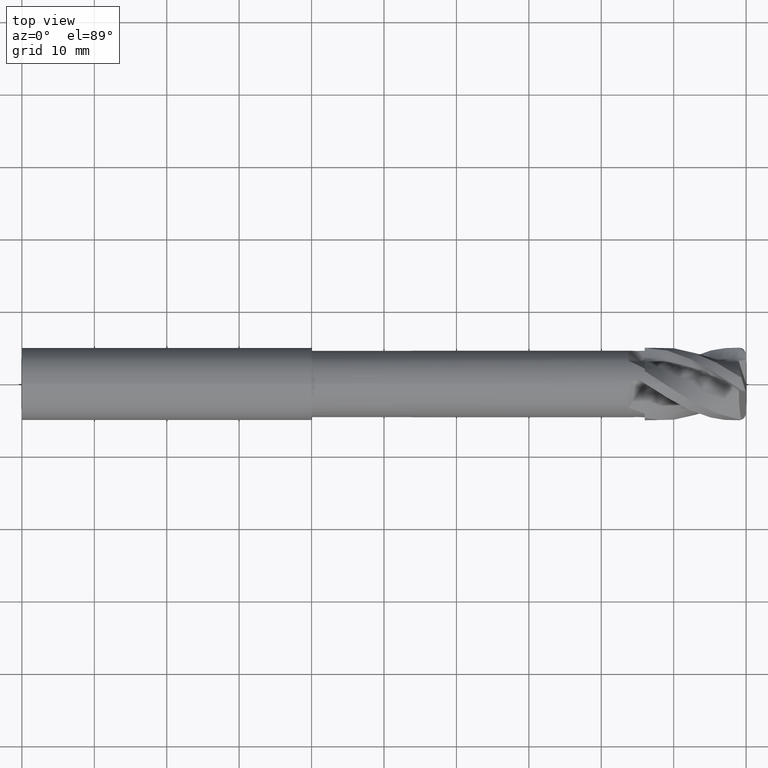
[diagram: clean part render]
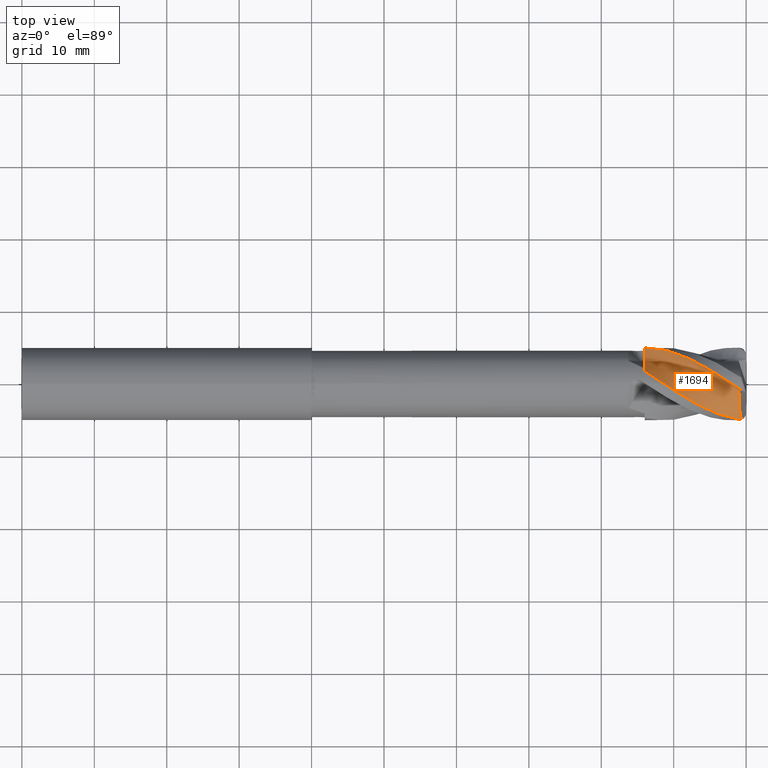
[diagram: same view with one face highlighted and labeled with its STEP entity id]
A machine part, top view. The second image highlights one B-rep face of the part: STEP entity #1694.
In plain terms, the highlighted face is a freeform B-spline surface patch.
Its self-contained STEP definition (entity closure, byte-faithful):
#5 = EDGE_CURVE ( 'NONE', #2621, #1795, #157, .T. ) ;
#37 = EDGE_CURVE ( 'NONE', #2620, #1765, #104, .T. ) ;
#46 = CARTESIAN_POINT ( 'NONE',  ( 57.91747542004345900, 7.209944447028602900E-015, 5.000000000000016900 ) ) ;
#47 = CARTESIAN_POINT ( 'NONE',  ( 56.92423716703095900, 0.6545368507913429400, 5.000000000000015100 ) ) ;
#48 = CARTESIAN_POINT ( 'NONE',  ( 55.93850143924947800, 1.304420733827071200, 4.871756002316021600 ) ) ;
#52 = CARTESIAN_POINT ( 'NONE',  ( 53.93546204917661400, 2.523756299331029900, 4.366483039990776600 ) ) ;
#53 = CARTESIAN_POINT ( 'NONE',  ( 52.95149864323444400, 3.072682200840333600, 3.997868365304698000 ) ) ;
#76 = EDGE_CURVE ( 'NONE', #1788, #2646, #741, .T. ) ;
#104 = B_SPLINE_CURVE_WITH_KNOTS ( 'NONE', 3,
 ( #2760, #2770, #2772, #2771, #2768, #2750, #1929, #53, #52, #48, #47, #46 ),
 .UNSPECIFIED., .F., .F.,
 ( 4, 2, 2, 2, 2, 4 ),
 ( 0.0000000000000000000, 0.003556879358868270400, 0.005335319038302404500, 0.007113758717736539000, 0.01067063807660480700, 0.01422751743547307500 ),
 .UNSPECIFIED. ) ;
#129 = EDGE_CURVE ( 'NONE', #2618, #1788, #726, .T. ) ;
#133 = EDGE_CURVE ( 'NONE', #1793, #1780, #725, .T. ) ;
#142 = EDGE_CURVE ( 'NONE', #2342, #2621, #721, .T. ) ;
#147 = EDGE_CURVE ( 'NONE', #1765, #2618, #720, .T. ) ;
#157 = B_SPLINE_CURVE_WITH_KNOTS ( 'NONE', 3,
 ( #2668, #2629, #2634, #2636, #2664, #2637, #2639, #1797, #1798, #1810, #1811, #1805, #1807, #1809, #1804, #1800, #1802, #2684, #2686, #2682, #2685, #2692, #2693, #2687 ),
 .UNSPECIFIED., .F., .F.,
 ( 4, 2, 2, 2, 2, 2, 2, 2, 2, 2, 2, 4 ),
 ( 7.520081291105786100E-017, 0.001548626980214296000, 0.003097253960428516600, 0.003871567450535626400, 0.004645880940642737100, 0.006194507920856973300, 0.006968821410964083100, 0.007743134901071194700, 0.009291761881285430900, 0.01084038886149966800, 0.01161470235160679500, 0.01238901584171392100 ),
 .UNSPECIFIED. ) ;
#202 = EDGE_CURVE ( 'NONE', #2609, #2342, #2715, .T. ) ;
#232 = EDGE_CURVE ( 'NONE', #2644, #1793, #2736, .T. ) ;
#239 = EDGE_CURVE ( 'NONE', #2646, #2609, #2716, .T. ) ;
#256 = CARTESIAN_POINT ( 'NONE',  ( 58.96502804183641200, -0.9003671677526017300, 3.197469055596891400 ) ) ;
#277 = CARTESIAN_POINT ( 'NONE',  ( 58.99055427674433400, -1.048948359004532500, 3.071330523329978100 ) ) ;
#278 = CARTESIAN_POINT ( 'NONE',  ( 59.00564662409133400, -1.225404124342737200, 2.971800587307312100 ) ) ;
#281 = CARTESIAN_POINT ( 'NONE',  ( 59.00432694237970600, -1.603402126193014300, 2.869719317874782400 ) ) ;
#282 = CARTESIAN_POINT ( 'NONE',  ( 59.00566763323122600, -1.790271074294576700, 2.812671759218627900 ) ) ;
#283 = CARTESIAN_POINT ( 'NONE',  ( 59.01713705153629500, -2.342872375192012400, 2.619188618034584700 ) ) ;
#284 = CARTESIAN_POINT ( 'NONE',  ( 59.03423178705525500, -2.700676605357878600, 2.461980378645527400 ) ) ;
#285 = CARTESIAN_POINT ( 'NONE',  ( 59.08770827991289600, -3.384478062797291000, 2.092825309101544300 ) ) ;
#286 = CARTESIAN_POINT ( 'NONE',  ( 59.12419992835383200, -3.711286231320794800, 1.880287214670842900 ) ) ;
#288 = CARTESIAN_POINT ( 'NONE',  ( 59.21516100259203300, -4.322168735473435500, 1.407873049636633800 ) ) ;
#289 = CARTESIAN_POINT ( 'NONE',  ( 59.26893102367267800, -4.606681720038245900, 1.150183232531294600 ) ) ;
#290 = CARTESIAN_POINT ( 'NONE',  ( 59.33249920832027900, -4.866457508753339500, 0.8671008399247022200 ) ) ;
#476 = ORIENTED_EDGE ( 'NONE', *, *, #147, .F. ) ;
#485 = ORIENTED_EDGE ( 'NONE', *, *, #37, .F. ) ;
#492 = ORIENTED_EDGE ( 'NONE', *, *, #142, .F. ) ;
#497 = ORIENTED_EDGE ( 'NONE', *, *, #5690, .F. ) ;
#552 = ORIENTED_EDGE ( 'NONE', *, *, #5, .F. ) ;
#557 = ORIENTED_EDGE ( 'NONE', *, *, #5689, .F. ) ;
#574 = ORIENTED_EDGE ( 'NONE', *, *, #76, .F. ) ;
#575 = ORIENTED_EDGE ( 'NONE', *, *, #239, .F. ) ;
#582 = ORIENTED_EDGE ( 'NONE', *, *, #133, .F. ) ;
#612 = ORIENTED_EDGE ( 'NONE', *, *, #129, .F. ) ;
#704 = ORIENTED_EDGE ( 'NONE', *, *, #202, .F. ) ;
#710 = ORIENTED_EDGE ( 'NONE', *, *, #232, .F. ) ;
#720 = B_SPLINE_CURVE_WITH_KNOTS ( 'NONE', 3,
 ( #2928, #2924, #2923, #2922 ),
 .UNSPECIFIED., .F., .F.,
 ( 4, 4 ),
 ( 0.01422751743547307500, 0.01551490767436639400 ),
 .UNSPECIFIED. ) ;
#721 = B_SPLINE_CURVE_WITH_KNOTS ( 'NONE', 3,
 ( #2955, #2927, #2926, #2925 ),
 .UNSPECIFIED., .F., .F.,
 ( 4, 4 ),
 ( 0.001710868118502091300, 0.002073565971238537800 ),
 .UNSPECIFIED. ) ;
#725 = B_SPLINE_CURVE_WITH_KNOTS ( 'NONE', 3,
 ( #2972, #2967, #2966, #2965 ),
 .UNSPECIFIED., .F., .F.,
 ( 4, 4 ),
 ( 0.0000000000000000000, 1.000000000000000000 ),
 .UNSPECIFIED. ) ;
#726 = B_SPLINE_CURVE_WITH_KNOTS ( 'NONE', 3,
 ( #3007, #3003, #3002, #3001, #2999, #2988, #2979, #2978, #2976, #2975, #2974, #2973 ),
 .UNSPECIFIED., .F., .F.,
 ( 4, 2, 2, 2, 2, 4 ),
 ( 0.0000000000000000000, 0.0004275252582154176900, 0.0008550505164308353700, 0.001282575774646253200, 0.001496338403753963000, 0.001710101032861673100 ),
 .UNSPECIFIED. ) ;
#741 = B_SPLINE_CURVE_WITH_KNOTS ( 'NONE', 3,
 ( #4711, #4753, #4759, #4768 ),
 .UNSPECIFIED., .F., .F.,
 ( 4, 4 ),
 ( 0.0000000000000000000, 0.0004974621187374327000 ),
 .UNSPECIFIED. ) ;
#805 = EDGE_LOOP ( 'NONE', ( #582, #710, #557, #552, #492, #704, #575, #574, #612, #476, #485, #497 ) ) ;
#1670 = CARTESIAN_POINT ( 'NONE',  ( 43.67681224951498100, 1.221168424383392900, 7.341838867739095800 ) ) ;
#1671 = CARTESIAN_POINT ( 'NONE',  ( 42.63379712825874200, 2.260564687652166300, 7.116287527366655900 ) ) ;
#1672 = CARTESIAN_POINT ( 'NONE',  ( 41.59778928541393100, 3.149999999999865400, 6.679860838698961500 ) ) ;
#1694 = ADVANCED_FACE ( 'NONE', ( #2833 ), #4802, .F. ) ;
#1765 = VERTEX_POINT ( 'NONE', #5273 ) ;
#1780 = VERTEX_POINT ( 'NONE', #5287 ) ;
#1788 = VERTEX_POINT ( 'NONE', #5295 ) ;
#1793 = VERTEX_POINT ( 'NONE', #5300 ) ;
#1795 = VERTEX_POINT ( 'NONE', #5302 ) ;
#1797 = CARTESIAN_POINT ( 'NONE',  ( 55.53809191303526700, -3.956849553812373800, 3.059892722481712700 ) ) ;
#1798 = CARTESIAN_POINT ( 'NONE',  ( 55.32108793641145900, -3.868300109923298100, 3.171263240927397300 ) ) ;
#1800 = CARTESIAN_POINT ( 'NONE',  ( 52.07861091364759400, -2.210068786094941700, 4.493716102544487600 ) ) ;
#1802 = CARTESIAN_POINT ( 'NONE',  ( 51.65023826814334700, -1.949907647478631200, 4.613043055464731700 ) ) ;
#1804 = CARTESIAN_POINT ( 'NONE',  ( 52.72748488531895800, -2.574842646694163400, 4.288316389581093600 ) ) ;
#1805 = CARTESIAN_POINT ( 'NONE',  ( 53.59218592723502200, -3.039315564614433200, 3.972807589264509600 ) ) ;
#1807 = CARTESIAN_POINT ( 'NONE',  ( 53.37705443811361800, -2.924710533539030900, 4.057815033370936000 ) ) ;
#1809 = CARTESIAN_POINT ( 'NONE',  ( 52.94512103127322400, -2.691900761734290300, 4.215858730913513600 ) ) ;
#1810 = CARTESIAN_POINT ( 'NONE',  ( 54.67026813124853400, -3.585475262526033500, 3.496711637606477700 ) ) ;
#1811 = CARTESIAN_POINT ( 'NONE',  ( 54.23765550107217600, -3.373960600489781300, 3.701208834534581700 ) ) ;
#1865 = CARTESIAN_POINT ( 'NONE',  ( 45.99999999999998600, 1.691591331546923300, 4.705158739833917600 ) ) ;
#1884 = CARTESIAN_POINT ( 'NONE',  ( 45.99999999999999300, 2.205355292586993700, 3.942485359056494300 ) ) ;
#1885 = CARTESIAN_POINT ( 'NONE',  ( 45.99999999999997900, 2.594424057684289900, 3.120752341764285700 ) ) ;
#1886 = CARTESIAN_POINT ( 'NONE',  ( 45.99999999999998600, 2.906065502884610300, 2.010845157374382200 ) ) ;
#1887 = CARTESIAN_POINT ( 'NONE',  ( 46.00000000000002100, 2.959530112421820300, 1.784253803624475100 ) ) ;
#1888 = CARTESIAN_POINT ( 'NONE',  ( 46.00000000000002800, 3.024886278930737100, 1.442712641506904700 ) ) ;
#1889 = CARTESIAN_POINT ( 'NONE',  ( 46.00000000000002800, 3.044258053300624900, 1.328405238031586300 ) ) ;
#1890 = CARTESIAN_POINT ( 'NONE',  ( 46.00000000000002800, 3.069692951030306800, 1.156253161950089100 ) ) ;
#1891 = CARTESIAN_POINT ( 'NONE',  ( 45.99999999999999300, 3.077567302494463900, 1.098755774674707600 ) ) ;
#1892 = CARTESIAN_POINT ( 'NONE',  ( 45.99999999999999300, 3.092113107384217000, 0.9834723877458154700 ) ) ;
#1893 = CARTESIAN_POINT ( 'NONE',  ( 45.99999999999997200, 3.098857781135724300, 0.9257103896741731800 ) ) ;
#1895 = CARTESIAN_POINT ( 'NONE',  ( 45.99999999999997900, 3.161184551108898500, 0.6434148522232530100 ) ) ;
#1897 = CARTESIAN_POINT ( 'NONE',  ( 46.00000000000000700, 3.275915507441883500, 0.4258171335345223900 ) ) ;
#1899 = CARTESIAN_POINT ( 'NONE',  ( 46.00000000000000700, 3.529659972641384400, 0.1849998010471080900 ) ) ;
#1901 = CARTESIAN_POINT ( 'NONE',  ( 45.99999999999997900, 3.627280143483072400, 0.1193111504181272000 ) ) ;
#1903 = CARTESIAN_POINT ( 'NONE',  ( 45.99999999999998600, 3.842306148971856000, 0.02628129662517304400 ) ) ;
#1905 = CARTESIAN_POINT ( 'NONE',  ( 46.00000000000004300, 3.956904978037196300, 6.614687337607049300E-014 ) ) ;
#1907 = CARTESIAN_POINT ( 'NONE',  ( 46.00000000000002100, 4.075000000000009900, 7.013819488166717400E-014 ) ) ;
#1929 = CARTESIAN_POINT ( 'NONE',  ( 51.46874302586701300, 3.763987637683924500, 3.307337132313394400 ) ) ;
#1947 = CARTESIAN_POINT ( 'NONE',  ( 59.99602833100365700, -1.137561027734971500, 3.357411630896177400 ) ) ;
#1950 = CARTESIAN_POINT ( 'NONE',  ( 59.82821170704895800, -1.091468156618174100, 3.309335361800866100 ) ) ;
#1951 = CARTESIAN_POINT ( 'NONE',  ( 59.65717465113422000, -1.050390222917391400, 3.277710411180232400 ) ) ;
#1952 = CARTESIAN_POINT ( 'NONE',  ( 59.31282440467261800, -0.9724759487063549000, 3.228141033655254100 ) ) ;
#1953 = CARTESIAN_POINT ( 'NONE',  ( 59.13930619490463400, -0.9357814397270917100, 3.210721401684900400 ) ) ;
#1954 = CARTESIAN_POINT ( 'NONE',  ( 58.96502804183641200, -0.9003671677526017300, 3.197469055596891400 ) ) ;
#2342 = VERTEX_POINT ( 'NONE', #5305 ) ;
#2609 = VERTEX_POINT ( 'NONE', #5321 ) ;
#2618 = VERTEX_POINT ( 'NONE', #5325 ) ;
#2620 = VERTEX_POINT ( 'NONE', #5326 ) ;
#2621 = VERTEX_POINT ( 'NONE', #5327 ) ;
#2629 = CARTESIAN_POINT ( 'NONE',  ( 58.55975406394927100, -4.840077372586747200, 1.285481442893260200 ) ) ;
#2634 = CARTESIAN_POINT ( 'NONE',  ( 58.12742268727267000, -4.758676406911309400, 1.561265136617060700 ) ) ;
#2636 = CARTESIAN_POINT ( 'NONE',  ( 57.26739523412823000, -4.548514048393263600, 2.096084426753688200 ) ) ;
#2637 = CARTESIAN_POINT ( 'NONE',  ( 56.19154602883928400, -4.199216870540805500, 2.717832762124381400 ) ) ;
#2639 = CARTESIAN_POINT ( 'NONE',  ( 55.97373829835726900, -4.121877372309889200, 2.833677609087080600 ) ) ;
#2644 = VERTEX_POINT ( 'NONE', #5332 ) ;
#2646 = VERTEX_POINT ( 'NONE', #5333 ) ;
#2664 = CARTESIAN_POINT ( 'NONE',  ( 56.83959025679039500, -4.419773616927676200, 2.354941648948873500 ) ) ;
#2668 = CARTESIAN_POINT ( 'NONE',  ( 59.00000000000000000, -4.896815992771975900, 1.010541010020298700 ) ) ;
#2682 = CARTESIAN_POINT ( 'NONE',  ( 49.70197508597813400, -0.7092434534762974700, 4.951473758305239100 ) ) ;
#2684 = CARTESIAN_POINT ( 'NONE',  ( 50.79068907368385800, -1.409472762071493100, 4.805797810795375800 ) ) ;
#2685 = CARTESIAN_POINT ( 'NONE',  ( 49.48264260011671200, -0.5708358421329874400, 4.969340815399208500 ) ) ;
#2686 = CARTESIAN_POINT ( 'NONE',  ( 50.35824948977461400, -1.128584661860377400, 4.879218306547725700 ) ) ;
#2687 = CARTESIAN_POINT ( 'NONE',  ( 48.61852305000183300, 2.088986535836445700E-013, 5.000000000000020400 ) ) ;
#2692 = CARTESIAN_POINT ( 'NONE',  ( 49.04869720329458000, -0.2876198637098789100, 4.993743737143071300 ) ) ;
#2693 = CARTESIAN_POINT ( 'NONE',  ( 48.83325750194284600, -0.1441098243814651900, 5.000000000000462700 ) ) ;
#2715 = B_SPLINE_CURVE_WITH_KNOTS ( 'NONE', 3,
 ( #256, #277, #278, #281, #282, #283, #284, #285, #286, #288, #289, #290 ),
 .UNSPECIFIED., .F., .F.,
 ( 4, 2, 2, 2, 2, 4 ),
 ( 0.002025208126638553500, 0.002608545509492749100, 0.003191882892346944700, 0.004358557658055335800, 0.005525232423763726900, 0.006691907189472119000 ),
 .UNSPECIFIED. ) ;
#2716 = B_SPLINE_CURVE_WITH_KNOTS ( 'NONE', 3,
 ( #1947, #1950, #1951, #1952, #1953, #1954 ),
 .UNSPECIFIED., .F., .F.,
 ( 4, 2, 4 ),
 ( 0.001822405988392237900, 0.002373485176599807500, 0.002924564364807377200 ),
 .UNSPECIFIED. ) ;
#2736 = B_SPLINE_CURVE_WITH_KNOTS ( 'NONE', 3,
 ( #1865, #1884, #1885, #1886, #1887, #1888, #1889, #1890, #1891, #1892, #1893, #1895, #1897, #1899, #1901, #1903, #1905, #1907 ),
 .UNSPECIFIED., .F., .F.,
 ( 4, 2, 2, 2, 2, 2, 2, 2, 4 ),
 ( 0.0004067341511793954600, 0.003134292908812885100, 0.003816182598221257700, 0.004157127442925443800, 0.004327599865277536800, 0.004498072287629629800, 0.005179961977038003700, 0.005520906821742190700, 0.005861851666446376800 ),
 .UNSPECIFIED. ) ;
#2750 = CARTESIAN_POINT ( 'NONE',  ( 50.97336759399545500, 3.972549820441337900, 3.054049962408369900 ) ) ;
#2760 = CARTESIAN_POINT ( 'NONE',  ( 46.00000000000002100, 5.000000000000022200, 8.621722013319833700E-014 ) ) ;
#2768 = CARTESIAN_POINT ( 'NONE',  ( 49.97444193776732400, 4.338679651466032200, 2.506837077021493600 ) ) ;
#2770 = CARTESIAN_POINT ( 'NONE',  ( 47.00165533426061900, 5.000000000000011500, 0.6601196914228929500 ) ) ;
#2771 = CARTESIAN_POINT ( 'NONE',  ( 49.47475783191156800, 4.494508347204151400, 2.214991610503697300 ) ) ;
#2772 = CARTESIAN_POINT ( 'NONE',  ( 47.98680940017717900, 4.869613234755283000, 1.309213280811734700 ) ) ;
#2795 = VECTOR ( 'NONE', #5437, 1000.000000000000000 ) ;
#2799 = LINE ( 'NONE', #5436, #2795 ) ;
#2833 = FACE_OUTER_BOUND ( 'NONE', #805, .T. ) ;
#2922 = CARTESIAN_POINT ( 'NONE',  ( 59.00000000000000000, -0.7109128242120654800, 4.949202254543112500 ) ) ;
#2923 = CARTESIAN_POINT ( 'NONE',  ( 58.63745108597972000, -0.4744240045090158400, 4.983171958358218100 ) ) ;
#2924 = CARTESIAN_POINT ( 'NONE',  ( 58.27697179391837800, -0.2369055196105420700, 5.000000000000019500 ) ) ;
#2925 = CARTESIAN_POINT ( 'NONE',  ( 59.00000000000000000, -4.896815992771975900, 1.010541010020298700 ) ) ;
#2926 = CARTESIAN_POINT ( 'NONE',  ( 59.10380185337031400, -4.910193910546140300, 0.9457151384752891000 ) ) ;
#2927 = CARTESIAN_POINT ( 'NONE',  ( 59.21775362647365900, -4.903132288227875600, 0.8918899981891139600 ) ) ;
#2928 = CARTESIAN_POINT ( 'NONE',  ( 57.91747542004345900, 7.209944447028602900E-015, 5.000000000000016900 ) ) ;
#2955 = CARTESIAN_POINT ( 'NONE',  ( 59.33249920832027900, -4.866457508753339500, 0.8671008399247022200 ) ) ;
#2965 = CARTESIAN_POINT ( 'NONE',  ( 46.00000000000002800, 4.603806250000012300, 7.893058096946935400E-014 ) ) ;
#2966 = CARTESIAN_POINT ( 'NONE',  ( 46.00000000000000000, 4.425000000000014000, 6.935988200463735600E-014 ) ) ;
#2967 = CARTESIAN_POINT ( 'NONE',  ( 46.00000000000000000, 4.250000000000013300, 6.935988200463735600E-014 ) ) ;
#2972 = CARTESIAN_POINT ( 'NONE',  ( 46.00000000000002100, 4.075000000000009900, 7.013819488166717400E-014 ) ) ;
#2973 = CARTESIAN_POINT ( 'NONE',  ( 60.00000000000000700, -1.088817076063023800, 3.848957959614314200 ) ) ;
#2974 = CARTESIAN_POINT ( 'NONE',  ( 60.00000000000002100, -1.101738644211806000, 3.920327829937549700 ) ) ;
#2975 = CARTESIAN_POINT ( 'NONE',  ( 59.99211809592294000, -1.120377565272257400, 3.990114203274277100 ) ) ;
#2976 = CARTESIAN_POINT ( 'NONE',  ( 59.96131350886884100, -1.141357664490762100, 4.129852018342779400 ) ) ;
#2978 = CARTESIAN_POINT ( 'NONE',  ( 59.93888395971298200, -1.146698008089876100, 4.197398209860558000 ) ) ;
#2979 = CARTESIAN_POINT ( 'NONE',  ( 59.85245815017781000, -1.147227827332065700, 4.393786602961236900 ) ) ;
#2988 = CARTESIAN_POINT ( 'NONE',  ( 59.76991704804901700, -1.126184913480621200, 4.513523127262964800 ) ) ;
#2999 = CARTESIAN_POINT ( 'NONE',  ( 59.57569992123249800, -1.048333243745101200, 4.713335493798989100 ) ) ;
#3001 = CARTESIAN_POINT ( 'NONE',  ( 59.46896441576288300, -0.9943022478561954800, 4.790272084161616200 ) ) ;
#3002 = CARTESIAN_POINT ( 'NONE',  ( 59.23807028003468400, -0.8630167669691901600, 4.904270866197669500 ) ) ;
#3003 = CARTESIAN_POINT ( 'NONE',  ( 59.12064028403636900, -0.7896058702455947000, 4.937898635752791400 ) ) ;
#3007 = CARTESIAN_POINT ( 'NONE',  ( 59.00000000000000000, -0.7109128242120654800, 4.949202254543112500 ) ) ;
#3892 = CARTESIAN_POINT ( 'NONE',  ( 45.73989784981754500, -0.7474576554156269200, 7.438832625899893400 ) ) ;
#3893 = CARTESIAN_POINT ( 'NONE',  ( 46.78711680412472200, -1.807706374164932400, 7.219595434474409300 ) ) ;
#3894 = CARTESIAN_POINT ( 'NONE',  ( 48.85190096156822600, -3.657857319374059100, 6.510419248176702900 ) ) ;
#3895 = CARTESIAN_POINT ( 'NONE',  ( 49.89797893406669300, -4.535201178554997300, 5.901899140391253500 ) ) ;
#3896 = CARTESIAN_POINT ( 'NONE',  ( 51.96229978744898400, -5.949594400872362200, 4.521031375359275900 ) ) ;
#3897 = CARTESIAN_POINT ( 'NONE',  ( 53.00979443688330400, -6.512254108417407900, 3.602721983296872700 ) ) ;
#3898 = CARTESIAN_POINT ( 'NONE',  ( 55.07406752468382600, -7.257441543558211800, 1.770345038062383700 ) ) ;
#3899 = CARTESIAN_POINT ( 'NONE',  ( 56.12028152416073100, -7.409637548445505000, 0.7098267152426521700 ) ) ;
#3900 = CARTESIAN_POINT ( 'NONE',  ( 58.18436103528718900, -7.362820171156235100, -1.267928681810216900 ) ) ;
#3901 = CARTESIAN_POINT ( 'NONE',  ( 59.23199202019628000, -7.074896574115148200, -2.305294312747412800 ) ) ;
#3902 = CARTESIAN_POINT ( 'NONE',  ( 61.29665352377968900, -6.245505073789769500, -4.099175028899807700 ) ) ;
#3903 = CARTESIAN_POINT ( 'NONE',  ( 62.34235640519271700, -5.577668841596977100, -4.933528188813650800 ) ) ;
#3904 = CARTESIAN_POINT ( 'NONE',  ( 64.40653884823460400, -4.095187487459636300, -6.249096972761763300 ) ) ;
#3905 = CARTESIAN_POINT ( 'NONE',  ( 65.45451604804607400, -3.134208717894813900, -6.743926396033119300 ) ) ;
#3906 = CARTESIAN_POINT ( 'NONE',  ( 67.51842746811972500, -1.263751567730431400, -7.362700056652377300 ) ) ;
#3907 = CARTESIAN_POINT ( 'NONE',  ( 68.56302018390050500, -0.2004755758164575300, -7.444701157373740100 ) ) ;
#3908 = CARTESIAN_POINT ( 'NONE',  ( 69.59552992334586500, 0.7849577433630098300, -7.354280524357645500 ) ) ;
#3909 = CARTESIAN_POINT ( 'NONE',  ( 42.63441696723483400, 3.149999999999897300, 5.106894639429292200 ) ) ;
#3910 = CARTESIAN_POINT ( 'NONE',  ( 43.66950917772495400, 2.470520452116235600, 5.542903566020773300 ) ) ;
#3911 = CARTESIAN_POINT ( 'NONE',  ( 44.71321842186847600, 1.654506733207387100, 5.815363603220429700 ) ) ;
#3912 = CARTESIAN_POINT ( 'NONE',  ( 46.77638856136316300, 0.06764452079837302000, 6.077441318983194800 ) ) ;
#3913 = CARTESIAN_POINT ( 'NONE',  ( 47.82370902277363500, -0.8015253585014895400, 5.992473586092731200 ) ) ;
#3914 = CARTESIAN_POINT ( 'NONE',  ( 49.88841220674199000, -2.365423877279458200, 5.589543875442313200 ) ) ;
#3915 = CARTESIAN_POINT ( 'NONE',  ( 50.93445629136645200, -3.123426326630957700, 5.177295999865777700 ) ) ;
#3916 = CARTESIAN_POINT ( 'NONE',  ( 52.99880574987018600, -4.397698853715078300, 4.189852156884660100 ) ) ;
#3917 = CARTESIAN_POINT ( 'NONE',  ( 54.04632799934763200, -4.928632906918792000, 3.501445480984198200 ) ) ;
#3918 = CARTESIAN_POINT ( 'NONE',  ( 56.11056731705967600, -5.702314671848030000, 2.086264759848817100 ) ) ;
#3919 = CARTESIAN_POINT ( 'NONE',  ( 57.15679207447627200, -5.916726406713802800, 1.247803368387675500 ) ) ;
#3920 = CARTESIAN_POINT ( 'NONE',  ( 59.22088338701413300, -6.062290899514832400, -0.3586653019955919300 ) ) ;
#3921 = CARTESIAN_POINT ( 'NONE',  ( 60.26850987613899200, -5.920926217449999000, -1.216080273039438900 ) ) ;
#3922 = CARTESIAN_POINT ( 'NONE',  ( 62.33311978951604000, -5.415644167667751100, -2.746580554439927500 ) ) ;
#3923 = CARTESIAN_POINT ( 'NONE',  ( 63.37887708635609100, -4.951753776744721900, -3.475239320006090300 ) ) ;
#3924 = CARTESIAN_POINT ( 'NONE',  ( 65.44312021043383300, -3.872960793492499200, -4.677834400546605500 ) ) ;
#3925 = CARTESIAN_POINT ( 'NONE',  ( 66.49102041256642800, -3.145007469806048400, -5.157221340704080800 ) ) ;
#3926 = CARTESIAN_POINT ( 'NONE',  ( 68.55482195884737000, -1.686518302649506300, -5.833255280070959600 ) ) ;
#3927 = CARTESIAN_POINT ( 'NONE',  ( 69.60008720082838400, -0.8387210443544411700, -5.992050238093959500 ) ) ;
#3928 = CARTESIAN_POINT ( 'NONE',  ( 70.63215502731296200, -0.03223094022807493400, -6.010245307557823000 ) ) ;
#3929 = CARTESIAN_POINT ( 'NONE',  ( 43.67104464905574400, 3.149999999999928900, 3.533928440159620300 ) ) ;
#3930 = CARTESIAN_POINT ( 'NONE',  ( 44.70510543197662700, 2.680213191048848500, 3.969470880531170500 ) ) ;
#3931 = CARTESIAN_POINT ( 'NONE',  ( 45.74962459420906000, 2.087845042031247100, 4.288888338701223500 ) ) ;
#3932 = CARTESIAN_POINT ( 'NONE',  ( 47.81287927292170500, 0.8827466970125077400, 4.716050012067032800 ) ) ;
#3933 = CARTESIAN_POINT ( 'NONE',  ( 48.86030124141826300, 0.2046556571619555800, 4.765351737712126800 ) ) ;
#3934 = CARTESIAN_POINT ( 'NONE',  ( 50.92492345192008000, -1.072990435184854900, 4.668668502706842600 ) ) ;
#3935 = CARTESIAN_POINT ( 'NONE',  ( 51.97093364866191200, -1.711651474707453600, 4.452692859339226300 ) ) ;
#3936 = CARTESIAN_POINT ( 'NONE',  ( 54.03531171229568700, -2.845803306557253400, 3.858672938411120200 ) ) ;
#3937 = CARTESIAN_POINT ( 'NONE',  ( 55.08286156180764000, -3.345011705419637300, 3.400168978671523200 ) ) ;
#3938 = CARTESIAN_POINT ( 'NONE',  ( 57.14706710943983800, -4.147187800138386400, 2.402184481635251800 ) ) ;
#3939 = CARTESIAN_POINT ( 'NONE',  ( 58.19330262479181900, -4.423815264982098800, 1.785780021532430200 ) ) ;
#3940 = CARTESIAN_POINT ( 'NONE',  ( 60.25740573874108500, -4.761761627873426900, 0.5505980778193038100 ) ) ;
#3941 = CARTESIAN_POINT ( 'NONE',  ( 61.30502773208171900, -4.766955860783773400, -0.1268662333314638500 ) ) ;
#3942 = CARTESIAN_POINT ( 'NONE',  ( 63.36958605525241900, -4.585783261546809300, -1.393986079980045600 ) ) ;
#3943 = CARTESIAN_POINT ( 'NONE',  ( 64.41539776751083900, -4.325838711892465900, -2.016950451197987900 ) ) ;
#3944 = CARTESIAN_POINT ( 'NONE',  ( 66.47970157264167300, -3.650734099525360800, -3.106571828331981400 ) ) ;
#3945 = CARTESIAN_POINT ( 'NONE',  ( 67.52752477710400600, -3.155806221717551500, -3.570516285375577400 ) ) ;
#3946 = CARTESIAN_POINT ( 'NONE',  ( 69.59121644955777700, -2.109285037568311000, -4.303810503488999300 ) ) ;
#3947 = CARTESIAN_POINT ( 'NONE',  ( 70.63705814052777000, -1.477219971151656900, -4.539506116270057000 ) ) ;
#3948 = CARTESIAN_POINT ( 'NONE',  ( 71.66878013128004500, -0.8494196238191618100, -4.666210090757998000 ) ) ;
#3949 = CARTESIAN_POINT ( 'NONE',  ( 44.96877968262643300, 3.149999999999969300, 1.564761130418174300 ) ) ;
#3950 = CARTESIAN_POINT ( 'NONE',  ( 46.00156840187022300, 2.942208710552152200, 1.999727733584398400 ) ) ;
#3951 = CARTESIAN_POINT ( 'NONE',  ( 47.04708232417247200, 2.630333260907947500, 2.377922170823108400 ) ) ;
#3952 = CARTESIAN_POINT ( 'NONE',  ( 49.11044283593604100, 1.903158044849959000, 3.011749399256555800 ) ) ;
#3953 = CARTESIAN_POINT ( 'NONE',  ( 50.15799187929579300, 1.464275072154825900, 3.229140578167766200 ) ) ;
#3954 = CARTESIAN_POINT ( 'NONE',  ( 52.22251272060813000, 0.5449831012905233000, 3.515841645286109400 ) ) ;
#3955 = CARTESIAN_POINT ( 'NONE',  ( 53.26848049374248700, 0.05572336679474359400, 3.545575581471032100 ) ) ;
#3956 = CARTESIAN_POINT ( 'NONE',  ( 55.33289436760050300, -0.9030139567189289200, 3.444075796408133900 ) ) ;
#3957 = CARTESIAN_POINT ( 'NONE',  ( 56.38047876909667600, -1.362505595336949600, 3.273382797448089600 ) ) ;
#3958 = CARTESIAN_POINT ( 'NONE',  ( 58.44464204057706500, -2.200353214822515600, 2.797678541795708600 ) ) ;
#3959 = CARTESIAN_POINT ( 'NONE',  ( 59.49089102359700100, -2.554867402013756700, 2.459263049501161400 ) ) ;
#3960 = CARTESIAN_POINT ( 'NONE',  ( 61.55500891151312000, -3.133653072033179200, 1.688888095944294500 ) ) ;
#3961 = CARTESIAN_POINT ( 'NONE',  ( 62.60262527667070700, -3.322321701567958900, 1.236700689658168000 ) ) ;
#3962 = CARTESIAN_POINT ( 'NONE',  ( 64.66711901500536900, -3.546895732542385500, 0.2993019408811087900 ) ) ;
#3963 = CARTESIAN_POINT ( 'NONE',  ( 65.71299884891054400, -3.542267211784141200, -0.1913455717353264600 ) ) ;
#3964 = CARTESIAN_POINT ( 'NONE',  ( 67.77737861955982600, -3.372532609044820000, -1.139537257810329800 ) ) ;
#3965 = CARTESIAN_POINT ( 'NONE',  ( 68.82510543202791100, -3.169324979628446800, -1.584149555686848300 ) ) ;
#3966 = CARTESIAN_POINT ( 'NONE',  ( 70.88865955550682000, -2.638538898480873800, -2.389126858348676200 ) ) ;
#3967 = CARTESIAN_POINT ( 'NONE',  ( 71.93486563346438300, -2.276912965886709100, -2.721140699760345300 ) ) ;
#3968 = CARTESIAN_POINT ( 'NONE',  ( 72.96651193768319400, -1.872443031674559900, -2.983637246349579700 ) ) ;
#3969 = CARTESIAN_POINT ( 'NONE',  ( 45.22988703437621200, 3.149999999999976800, 1.168560019946398600 ) ) ;
#3970 = CARTESIAN_POINT ( 'NONE',  ( 46.26245174583878800, 2.994850509673922200, 1.603424222827489500 ) ) ;
#3971 = CARTESIAN_POINT ( 'NONE',  ( 47.30813388177806200, 2.739483170960518500, 1.993431267464197400 ) ) ;
#3972 = CARTESIAN_POINT ( 'NONE',  ( 49.37151568740904400, 2.108467216473544100, 2.668840093362239600 ) ) ;
#3973 = CARTESIAN_POINT ( 'NONE',  ( 50.41909029852870800, 1.717713471483713200, 2.920051267006161100 ) ) ;
#3974 = CARTESIAN_POINT ( 'NONE',  ( 52.48359074411809600, 0.8705231956718376700, 3.283890160598690300 ) ) ;
#3975 = CARTESIAN_POINT ( 'NONE',  ( 53.52954998152330300, 0.4113233563735730300, 3.363061444129120700 ) ) ;
#3976 = CARTESIAN_POINT ( 'NONE',  ( 55.59397106048411500, -0.5121201540385619300, 3.360657872878956000 ) ) ;
#3977 = CARTESIAN_POINT ( 'NONE',  ( 56.64156241391707900, -0.9636206867534155000, 3.247873118537061700 ) ) ;
#3978 = CARTESIAN_POINT ( 'NONE',  ( 58.70571717934276300, -1.808645501216288500, 2.877252880170000800 ) ) ;
#3979 = CARTESIAN_POINT ( 'NONE',  ( 59.75196887209526200, -2.178830680776578300, 2.594769424325137600 ) ) ;
#3980 = CARTESIAN_POINT ( 'NONE',  ( 61.81608973254959200, -2.806073787834872900, 1.917914734254390100 ) ) ;
#3981 = CARTESIAN_POINT ( 'NONE',  ( 62.86370496531698400, -3.031657899018100500, 1.511053572939691000 ) ) ;
#3982 = CARTESIAN_POINT ( 'NONE',  ( 64.92818570902194600, -3.337869109659172800, 0.6399954872825166500 ) ) ;
#3983 = CARTESIAN_POINT ( 'NONE',  ( 65.97407924917273200, -3.384610776528069700, 0.1759704389192333400 ) ) ;
#3984 = CARTESIAN_POINT ( 'NONE',  ( 68.03847430425290100, -3.316557812531415900, -0.7437652595033000800 ) ) ;
#3985 = CARTESIAN_POINT ( 'NONE',  ( 69.08618172244008800, -3.172044985628107700, -1.184487881326081700 ) ) ;
#3986 = CARTESIAN_POINT ( 'NONE',  ( 71.14970817071957800, -2.745026024474360900, -2.003887989790848600 ) ) ;
#3987 = CARTESIAN_POINT ( 'NONE',  ( 72.19591727103211600, -2.437849512579337600, -2.355268794788439600 ) ) ;
#3988 = CARTESIAN_POINT ( 'NONE',  ( 73.22761864011924600, -2.078277755938873200, -2.645099618740983400 ) ) ;
#3989 = CARTESIAN_POINT ( 'NONE',  ( 45.62425174422454400, 3.149999999999989300, 0.5701558198129625900 ) ) ;
#3990 = CARTESIAN_POINT ( 'NONE',  ( 46.65651368894123900, 3.074318966819593200, 1.004880345095311400 ) ) ;
#3991 = CARTESIAN_POINT ( 'NONE',  ( 47.70241432268360900, 2.904338248075456700, 1.412713633409573600 ) ) ;
#3992 = CARTESIAN_POINT ( 'NONE',  ( 49.76582828959922000, 2.418556884013783700, 2.150925419504441400 ) ) ;
#3993 = CARTESIAN_POINT ( 'NONE',  ( 50.81344151710511200, 2.100495343177347400, 2.453216780360028400 ) ) ;
#3994 = CARTESIAN_POINT ( 'NONE',  ( 52.87791115792556700, 1.362204199689393000, 2.933561150923283700 ) ) ;
#3995 = CARTESIAN_POINT ( 'NONE',  ( 53.92385750334553800, 0.9484054636851616500, 3.087400363222036600 ) ) ;
#3996 = CARTESIAN_POINT ( 'NONE',  ( 55.98828946457404500, 0.07826812895119633600, 3.234667221952399500 ) ) ;
#3997 = CARTESIAN_POINT ( 'NONE',  ( 57.03589131790275200, -0.3611629995905381000, 3.209344455691870200 ) ) ;
#3998 = CARTESIAN_POINT ( 'NONE',  ( 59.10003323615092800, -1.217027924053115900, 2.997438354282271800 ) ) ;
#3999 = CARTESIAN_POINT ( 'NONE',  ( 60.14628902155336500, -1.610881860228369900, 2.799432111270162800 ) ) ;
#4000 = CARTESIAN_POINT ( 'NONE',  ( 62.21041437162733000, -2.311312883939494100, 2.263826188525118100 ) ) ;
#4001 = CARTESIAN_POINT ( 'NONE',  ( 63.25802789406316900, -2.592652465475123100, 1.925423733282790800 ) ) ;
#4002 = CARTESIAN_POINT ( 'NONE',  ( 65.32248901127719900, -3.022164772223571800, 1.154563578427630500 ) ) ;
#4003 = CARTESIAN_POINT ( 'NONE',  ( 66.36840325270155500, -3.146493642218898000, 0.7307478934555371500 ) ) ;
#4004 = CARTESIAN_POINT ( 'NONE',  ( 68.43282139272173500, -3.232016016838320700, -0.1460091709348438100 ) ) ;
#4005 = CARTESIAN_POINT ( 'NONE',  ( 69.48049951863104900, -3.176153159410193300, -0.5808570023394077400 ) ) ;
#4006 = CARTESIAN_POINT ( 'NONE',  ( 71.54398416758542100, -2.905859353232263900, -1.422040662999096000 ) ) ;
#4007 = CARTESIAN_POINT ( 'NONE',  ( 72.59014708344837200, -2.680931100369251300, -1.802653715602970300 ) ) ;
#4008 = CARTESIAN_POINT ( 'NONE',  ( 73.62198236927355300, -2.389161194368425000, -2.133787729627477000 ) ) ;
#4009 = CARTESIAN_POINT ( 'NONE',  ( 45.75668852580385200, 3.249690114160919600, 0.3691978629519390700 ) ) ;
#4010 = CARTESIAN_POINT ( 'NONE',  ( 46.78914674201175200, 3.200687868662705600, 0.8173039759896320000 ) ) ;
#4011 = CARTESIAN_POINT ( 'NONE',  ( 47.83460676922931000, 3.056498673118072800, 1.245028610191035900 ) ) ;
#4012 = CARTESIAN_POINT ( 'NONE',  ( 49.89863270387797900, 2.608860584286209600, 2.028883211578617700 ) ) ;
#4013 = CARTESIAN_POINT ( 'NONE',  ( 50.94567732436408400, 2.306909835030405800, 2.360125630155054800 ) ) ;
#4014 = CARTESIAN_POINT ( 'NONE',  ( 53.01061813187397600, 1.585541467763164500, 2.897944767801858400 ) ) ;
#4015 = CARTESIAN_POINT ( 'NONE',  ( 54.05607305006502400, 1.174818063171583700, 3.084256997425561100 ) ) ;
#4016 = CARTESIAN_POINT ( 'NONE',  ( 56.12105407822880900, 0.2973070402244851800, 3.290776123315623200 ) ) ;
#4017 = CARTESIAN_POINT ( 'NONE',  ( 57.16811122057005400, -0.1522911982400405900, 3.296781334338688500 ) ) ;
#4018 = CARTESIAN_POINT ( 'NONE',  ( 59.23277011518506900, -1.038577854513098400, 3.136334314554104700 ) ) ;
#4019 = CARTESIAN_POINT ( 'NONE',  ( 60.27851672729298800, -1.454134469185740100, 2.962838608731724700 ) ) ;
#4020 = CARTESIAN_POINT ( 'NONE',  ( 62.34316487849842000, -2.202973295217305300, 2.462306858304247600 ) ) ;
#4021 = CARTESIAN_POINT ( 'NONE',  ( 63.39022958755686000, -2.514164290290142700, 2.137826686766665800 ) ) ;
#4022 = CARTESIAN_POINT ( 'NONE',  ( 65.45522952148860400, -3.001992926765293800, 1.379789132710911100 ) ) ;
#4023 = CARTESIAN_POINT ( 'NONE',  ( 66.50066362226793600, -3.158924313316836300, 0.9568272515096931700 ) ) ;
#4024 = CARTESIAN_POINT ( 'NONE',  ( 68.56557103472346200, -3.303254825782906900, 0.06861090768769029200 ) ) ;
#4025 = CARTESIAN_POINT ( 'NONE',  ( 69.61265773780571900, -3.278115673672815900, -0.3786574425842173000 ) ) ;
#4026 = CARTESIAN_POINT ( 'NONE',  ( 71.67672950531293500, -3.056759075112683600, -1.253654636263756400 ) ) ;
#4027 = CARTESIAN_POINT ( 'NONE',  ( 72.72236105604268600, -2.854684869346561200, -1.657464551583277300 ) ) ;
#4028 = CARTESIAN_POINT ( 'NONE',  ( 73.75454116064736400, -2.578702087075263700, -2.013937251014871000 ) ) ;
#4029 = CARTESIAN_POINT ( 'NONE',  ( 45.94514288891283400, 3.592162340643971300, 0.08323951119868200400 ) ) ;
#4030 = CARTESIAN_POINT ( 'NONE',  ( 46.97847702919001000, 3.581115688459426000, 0.5774018882479077200 ) ) ;
#4031 = CARTESIAN_POINT ( 'NONE',  ( 48.02227870119826000, 3.467815391577199900, 1.061422311466485800 ) ) ;
#4032 = CARTESIAN_POINT ( 'NONE',  ( 50.08838523534074500, 3.053062831553158100, 1.959634053732870300 ) ) ;
#4033 = CARTESIAN_POINT ( 'NONE',  ( 51.13345038422964700, 2.757332626990529200, 2.355813624139714100 ) ) ;
#4034 = CARTESIAN_POINT ( 'NONE',  ( 53.20003064080722100, 2.020505348806225200, 3.012344435507588300 ) ) ;
#4035 = CARTESIAN_POINT ( 'NONE',  ( 54.24380603809919400, 1.589664423094857800, 3.259752266336294100 ) ) ;
#4036 = CARTESIAN_POINT ( 'NONE',  ( 56.31066595897306100, 0.6507973425859180400, 3.568676301457225800 ) ) ;
#4037 = CARTESIAN_POINT ( 'NONE',  ( 57.35584472271714400, 0.1581147436655924200, 3.623197155710909300 ) ) ;
#4038 = CARTESIAN_POINT ( 'NONE',  ( 59.42228830355237100, -0.8253559260348127800, 3.532270778062578800 ) ) ;
#4039 = CARTESIAN_POINT ( 'NONE',  ( 60.46628295221339000, -1.299473699089567900, 3.385887434203633400 ) ) ;
#4040 = CARTESIAN_POINT ( 'NONE',  ( 62.53272408356524900, -2.165150180141389500, 2.910391364731153900 ) ) ;
#4041 = CARTESIAN_POINT ( 'NONE',  ( 63.57790457261224000, -2.541211788140753200, 2.587474438692135300 ) ) ;
#4042 = CARTESIAN_POINT ( 'NONE',  ( 65.64476880390395800, -3.146050643813511200, 1.805772701526622900 ) ) ;
#4043 = CARTESIAN_POINT ( 'NONE',  ( 66.68853945481278300, -3.362549640928087900, 1.358570152188348200 ) ) ;
#4044 = CARTESIAN_POINT ( 'NONE',  ( 68.75511209720343700, -3.605120347590844900, 0.4019416739305707300 ) ) ;
#4045 = CARTESIAN_POINT ( 'NONE',  ( 69.80018684112381800, -3.625618095147009600, -0.09196595792888330500 ) ) ;
#4046 = CARTESIAN_POINT ( 'NONE',  ( 71.86630382528949200, -3.466462742885528600, -1.068403587576603600 ) ) ;
#4047 = CARTESIAN_POINT ( 'NONE',  ( 72.91014524956220600, -3.287319761126217700, -1.532149482072765700 ) ) ;
#4048 = CARTESIAN_POINT ( 'NONE',  ( 73.94341533505868800, -3.019747373157863900, -1.947755276963979200 ) ) ;
#4049 = CARTESIAN_POINT ( 'NONE',  ( 46.00000000000002100, 3.832835566285795400, 6.524463823433595900E-014 ) ) ;
#4050 = CARTESIAN_POINT ( 'NONE',  ( 47.03400929694785000, 3.832835565135284100, 0.5265533936528269400 ) ) ;
#4051 = CARTESIAN_POINT ( 'NONE',  ( 48.07660253425536500, 3.724438865448506800, 1.046631652833749600 ) ) ;
#4052 = CARTESIAN_POINT ( 'NONE',  ( 50.14416488818243800, 3.304226055417234700, 2.012853528542355000 ) ) ;
#4053 = CARTESIAN_POINT ( 'NONE',  ( 51.18783136175543500, 2.998567298893151100, 2.444619320941401800 ) ) ;
#4054 = CARTESIAN_POINT ( 'NONE',  ( 53.25556980523757700, 2.229453526959313000, 3.161656032317982300 ) ) ;
#4055 = CARTESIAN_POINT ( 'NONE',  ( 54.29816745108568900, 1.775543629045023500, 3.437310230535420600 ) ) ;
#4056 = CARTESIAN_POINT ( 'NONE',  ( 56.36634562781285500, 0.7830719995254253900, 3.788756315426886600 ) ) ;
#4057 = CARTESIAN_POINT ( 'NONE',  ( 57.41020229068304600, 0.2577374563564307500, 3.860166084412068400 ) ) ;
#4058 = CARTESIAN_POINT ( 'NONE',  ( 59.47790259159767600, -0.7918970520630983500, 3.786873170791701600 ) ) ;
#4059 = CARTESIAN_POINT ( 'NONE',  ( 60.52066523839175000, -1.302512695185309200, 3.642924698316852200 ) ) ;
#4060 = CARTESIAN_POINT ( 'NONE',  ( 62.58836550788633700, -2.235899562203639100, 3.157235971945563600 ) ) ;
#4061 = CARTESIAN_POINT ( 'NONE',  ( 63.63222219300118400, -2.646580907209857600, 2.821950381496242300 ) ) ;
#4062 = CARTESIAN_POINT ( 'NONE',  ( 65.70040042492375700, -3.309393122996433500, 2.003907580503200500 ) ) ;
#4063 = CARTESIAN_POINT ( 'NONE',  ( 66.74299800985576800, -3.552490406737132100, 1.531759829235980900 ) ) ;
#4064 = CARTESIAN_POINT ( 'NONE',  ( 68.81073635551369700, -3.833888223068655500, 0.5185997664535133600 ) ) ;
#4065 = CARTESIAN_POINT ( 'NONE',  ( 69.85440295242031500, -3.869018140578152300, -0.009239431232244112200 ) ) ;
#4066 = CARTESIAN_POINT ( 'NONE',  ( 71.92196544058857900, -3.722743802129840200, -1.052679310592805400 ) ) ;
#4067 = CARTESIAN_POINT ( 'NONE',  ( 72.96455919236032600, -3.543537745745422900, -1.552796276623358300 ) ) ;
#4068 = CARTESIAN_POINT ( 'NONE',  ( 73.99856766252591500, -3.268535883442085700, -2.001831319050657600 ) ) ;
#4069 = CARTESIAN_POINT ( 'NONE',  ( 46.00000000000002100, 4.383333333333348000, 7.561846041026793700E-014 ) ) ;
#4070 = CARTESIAN_POINT ( 'NONE',  ( 47.03565233193617000, 4.383333332342362000, 0.6006905953163954600 ) ) ;
#4071 = CARTESIAN_POINT ( 'NONE',  ( 48.07540956641100400, 4.258967670411919000, 1.197569011398338400 ) ) ;
#4072 = CARTESIAN_POINT ( 'NONE',  ( 50.14629161977028800, 3.780055840730512300, 2.299369955744400500 ) ) ;
#4073 = CARTESIAN_POINT ( 'NONE',  ( 51.18674658231995500, 3.428558602026257100, 2.796280673778013300 ) ) ;
#4074 = CARTESIAN_POINT ( 'NONE',  ( 53.25714397637135300, 2.550946430075503400, 3.614645171528237700 ) ) ;
#4075 = CARTESIAN_POINT ( 'NONE',  ( 54.29705182432391600, 2.029824923142119700, 3.931150694840345400 ) ) ;
#4076 = CARTESIAN_POINT ( 'NONE',  ( 56.36824181754509800, 0.8977817346326060200, 4.332237487974850900 ) ) ;
#4077 = CARTESIAN_POINT ( 'NONE',  ( 57.40907106591159700, 0.2939214464297929500, 4.414449684136482000 ) ) ;
#4078 = CARTESIAN_POINT ( 'NONE',  ( 59.47964998105994300, -0.9036022065869191400, 4.330991747598706500 ) ) ;
#4079 = CARTESIAN_POINT ( 'NONE',  ( 60.51959333763269200, -1.490169574348899200, 4.165734288204547800 ) ) ;
#4080 = CARTESIAN_POINT ( 'NONE',  ( 62.59017223618570800, -2.555145682463229500, 3.611790171315535100 ) ) ;
#4081 = CARTESIAN_POINT ( 'NONE',  ( 63.63100149630721300, -3.027273741683746100, 3.226431752447218100 ) ) ;
#4082 = CARTESIAN_POINT ( 'NONE',  ( 65.70219151867949800, -3.783458823993399300, 2.293384917172391500 ) ) ;
#4083 = CARTESIAN_POINT ( 'NONE',  ( 66.74209933446044800, -4.062708904425828200, 1.751385879635641000 ) ) ;
#4084 = CARTESIAN_POINT ( 'NONE',  ( 68.81249667681639400, -4.384053467326455500, 0.5952451177778583800 ) ) ;
#4085 = CARTESIAN_POINT ( 'NONE',  ( 69.85295170453845500, -4.424445921340256900, -0.01207577885047387100 ) ) ;
#4086 = CARTESIAN_POINT ( 'NONE',  ( 71.92383382881011800, -4.257769003544679800, -1.201840618211547500 ) ) ;
#4087 = CARTESIAN_POINT ( 'NONE',  ( 72.96359133716355000, -4.052252021429444200, -1.775856101071156900 ) ) ;
#4088 = CARTESIAN_POINT ( 'NONE',  ( 73.99924323021662100, -3.738681372101789100, -2.288206168898832400 ) ) ;
#4089 = CARTESIAN_POINT ( 'NONE',  ( 46.00000000000002100, 4.691666666666684200, 8.114064151629249900E-014 ) ) ;
#4090 = CARTESIAN_POINT ( 'NONE',  ( 47.03658593508417600, 4.691666665762452800, 0.6422220006941940000 ) ) ;
#4091 = CARTESIAN_POINT ( 'NONE',  ( 48.07474138613082500, 4.558356801599821900, 1.282108898163648600 ) ) ;
#4092 = CARTESIAN_POINT ( 'NONE',  ( 50.14748280033276700, 4.046567700699717400, 2.459847564087407300 ) ) ;
#4093 = CARTESIAN_POINT ( 'NONE',  ( 51.18613899828050500, 3.669396366928136200, 2.993245899824468600 ) ) ;
#4094 = CARTESIAN_POINT ( 'NONE',  ( 53.25802566828674900, 2.731014332971158700, 3.868364004949891700 ) ) ;
#4095 = CARTESIAN_POINT ( 'NONE',  ( 54.29642696272522100, 2.172247660719693700, 4.207750320867001300 ) ) ;
#4096 = CARTESIAN_POINT ( 'NONE',  ( 56.36930387180282100, 0.9620305601657058700, 4.636640832668721400 ) ) ;
#4097 = CARTESIAN_POINT ( 'NONE',  ( 57.40843746787569300, 0.3141880686405634200, 4.724903459147492800 ) ) ;
#4098 = CARTESIAN_POINT ( 'NONE',  ( 59.48062869241758900, -0.9661681690785978200, 4.635752101878196600 ) ) ;
#4099 = CARTESIAN_POINT ( 'NONE',  ( 60.51899296692561600, -1.595276033518715700, 4.458559496948064200 ) ) ;
#4100 = CARTESIAN_POINT ( 'NONE',  ( 62.59118418317608200, -2.733955164182804200, 3.866385593608088200 ) ) ;
#4101 = CARTESIAN_POINT ( 'NONE',  ( 63.63031778512765200, -3.240499476020354900, 3.452981425927997600 ) ) ;
#4102 = CARTESIAN_POINT ( 'NONE',  ( 65.70319470877051100, -4.048982621830792700, 2.455520928401641700 ) ) ;
#4103 = CARTESIAN_POINT ( 'NONE',  ( 66.74159598712914500, -4.348481853087051300, 1.874398244553590700 ) ) ;
#4104 = CARTESIAN_POINT ( 'NONE',  ( 68.81348263129099500, -4.692200554926886400, 0.6381741141752070900 ) ) ;
#4105 = CARTESIAN_POINT ( 'NONE',  ( 69.85213886182666000, -4.735540551181900400, -0.01366441475043899900 ) ) ;
#4106 = CARTESIAN_POINT ( 'NONE',  ( 71.92488031147304600, -4.557436165964497300, -1.285385740345551300 ) ) ;
#4107 = CARTESIAN_POINT ( 'NONE',  ( 72.96303589944219000, -4.337186237802451500, -1.900785543782444400 ) ) ;
#4108 = CARTESIAN_POINT ( 'NONE',  ( 73.99962161510831000, -4.002009462327366800, -2.448604479885794200 ) ) ;
#4109 = CARTESIAN_POINT ( 'NONE',  ( 46.00000000000002100, 5.616666666666695600, 9.881178078377523100E-014 ) ) ;
#4110 = CARTESIAN_POINT ( 'NONE',  ( 47.03943309875117500, 5.616666666028632600, 0.7668522492538116800 ) ) ;
#4111 = CARTESIAN_POINT ( 'NONE',  ( 48.07273684529460000, 5.456524195163527000, 1.535728558459716500 ) ) ;
#4112 = CARTESIAN_POINT ( 'NONE',  ( 50.15105634201588500, 4.846103280607329600, 2.941280389116294600 ) ) ;
#4113 = CARTESIAN_POINT ( 'NONE',  ( 51.18431624615786300, 4.391909661634581900, 3.584141577964104400 ) ) ;
#4114 = CARTESIAN_POINT ( 'NONE',  ( 53.26067074403723500, 3.271218041657318700, 4.629520505214584200 ) ) ;
#4115 = CARTESIAN_POINT ( 'NONE',  ( 54.29455237791621200, 2.599515873452820500, 5.037549198948045900 ) ) ;
#4116 = CARTESIAN_POINT ( 'NONE',  ( 56.37249003458890000, 1.154777036764601500, 5.549850866749257400 ) ) ;
#4117 = CARTESIAN_POINT ( 'NONE',  ( 57.40653667376371100, 0.3749879352728402400, 5.656264784179446000 ) ) ;
#4119 = CARTESIAN_POINT ( 'NONE',  ( 59.48356482649484900, -1.153866056553602300, 5.550033164717745200 ) ) ;
#4120 = CARTESIAN_POINT ( 'NONE',  ( 60.51719185479579700, -1.910595411028436200, 5.337035123179688900 ) ) ;
#4121 = CARTESIAN_POINT ( 'NONE',  ( 62.59422002415582400, -3.270383609341262200, 4.630171860484669100 ) ) ;
#4122 = CARTESIAN_POINT ( 'NONE',  ( 63.62826665156313800, -3.880176679030183300, 4.132630446370335200 ) ) ;
#4123 = CARTESIAN_POINT ( 'NONE',  ( 65.70620427906941100, -4.845554015342978400, 2.941928962089394700 ) ) ;
#4124 = CARTESIAN_POINT ( 'NONE',  ( 66.74008594516115500, -5.205800699071256900, 2.243435339307572600 ) ) ;
#4125 = CARTESIAN_POINT ( 'NONE',  ( 68.81644049468903300, -5.616641817727638000, 0.7669611033671182000 ) ) ;
#4126 = CARTESIAN_POINT ( 'NONE',  ( 69.84970033369988600, -5.668824440706292700, -0.01843032245047132600 ) ) ;
#4127 = CARTESIAN_POINT ( 'NONE',  ( 71.92801975945325000, -5.456437653224486300, -1.536021106747428500 ) ) ;
#4128 = CARTESIAN_POINT ( 'NONE',  ( 72.96132323648993200, -5.192007720827765700, -2.275543061378781500 ) ) ;
#4129 = CARTESIAN_POINT ( 'NONE',  ( 74.00075676978339300, -4.791993733004101600, -2.929799412846681300 ) ) ;
#4130 = CARTESIAN_POINT ( 'NONE',  ( 46.00000000000002100, 6.233333333333365400, 1.106638769555569000E-013 ) ) ;
#4131 = CARTESIAN_POINT ( 'NONE',  ( 47.04136095001647500, 6.233333332872571300, 0.8499709387337733800 ) ) ;
#4132 = CARTESIAN_POINT ( 'NONE',  ( 48.07140048473424800, 6.055302457538786600, 1.704808331990336200 ) ) ;
#4133 = CARTESIAN_POINT ( 'NONE',  ( 50.15343870314084300, 5.379127000546271900, 3.262235605802307400 ) ) ;
#4134 = CARTESIAN_POINT ( 'NONE',  ( 51.18310107807467100, 4.873585191438069200, 3.978072030057012500 ) ) ;
#4135 = CARTESIAN_POINT ( 'NONE',  ( 53.26243412787233200, 3.631353847448897100, 5.136958172057889600 ) ) ;
#4136 = CARTESIAN_POINT ( 'NONE',  ( 54.29330265471451600, 2.884361348608372100, 5.590748451001354100 ) ) ;
#4137 = CARTESIAN_POINT ( 'NONE',  ( 56.37461414310864400, 1.283274687830395800, 6.158657556136995800 ) ) ;
#4138 = CARTESIAN_POINT ( 'NONE',  ( 57.40526947768761800, 0.4155211796943468800, 6.277172334200923100 ) ) ;
#4139 = CARTESIAN_POINT ( 'NONE',  ( 59.48552224921445500, -1.278997981536926800, 6.159553873277260100 ) ) ;
#4140 = CARTESIAN_POINT ( 'NONE',  ( 60.51599111338166600, -2.120808329368337700, 5.922685540667255400 ) ) ;
#4141 = CARTESIAN_POINT ( 'NONE',  ( 62.59624391813659400, -3.628002572780143700, 5.139362705069231700 ) ) ;
#4142 = CARTESIAN_POINT ( 'NONE',  ( 63.62689922920402100, -4.306628147703937000, 4.585729793332158800 ) ) ;
#4143 = CARTESIAN_POINT ( 'NONE',  ( 65.70821065925143500, -5.376601611017226100, 3.266200984547624300 ) ) ;
#4144 = CARTESIAN_POINT ( 'NONE',  ( 66.73907925050720300, -5.777346596394235900, 2.489460069143334800 ) ) ;
#4145 = CARTESIAN_POINT ( 'NONE',  ( 68.81841240362966500, -6.232935992927954400, 0.8528190961619484000 ) ) ;
#4146 = CARTESIAN_POINT ( 'NONE',  ( 69.84807464827629500, -6.291013700389037000, -0.02160759425053721700 ) ) ;
#4147 = CARTESIAN_POINT ( 'NONE',  ( 71.93011272477912100, -6.055771978064654200, -1.703111351015301300 ) ) ;
#4148 = CARTESIAN_POINT ( 'NONE',  ( 72.96015173149385200, -5.761905342762274200, -2.525354169540048800 ) ) ;
#4149 = CARTESIAN_POINT ( 'NONE',  ( 74.00151353956677300, -5.318649913455254300, -3.250596034820603100 ) ) ;
#4150 = CARTESIAN_POINT ( 'NONE',  ( 46.00000000000002100, 6.850000000000042300, 1.224803047972754100E-013 ) ) ;
#4151 = CARTESIAN_POINT ( 'NONE',  ( 47.04330535037176700, 6.849999999716537500, 0.9331151065925585900 ) ) ;
#4152 = CARTESIAN_POINT ( 'NONE',  ( 48.07006412417819500, 6.654080719914055000, 1.873888105520959700 ) ) ;
#4153 = CARTESIAN_POINT ( 'NONE',  ( 50.15582106426149500, 5.912150720485223100, 3.583190822488323300 ) ) ;
#4154 = CARTESIAN_POINT ( 'NONE',  ( 51.18188590999577800, 5.355260721242907500, 4.372002482149925500 ) ) ;
#4155 = CARTESIAN_POINT ( 'NONE',  ( 53.26419751170312400, 3.991489653239134000, 5.644395838901201200 ) ) ;
#4156 = CARTESIAN_POINT ( 'NONE',  ( 54.29205293150850800, 3.169206823763521800, 6.143947703055207700 ) ) ;
#4157 = CARTESIAN_POINT ( 'NONE',  ( 56.37673825163269500, 1.411772338896596600, 6.767464245524202200 ) ) ;
#4158 = CARTESIAN_POINT ( 'NONE',  ( 57.40400228161583100, 0.4560544241158532300, 6.898079884222947400 ) ) ;
#4159 = CARTESIAN_POINT ( 'NONE',  ( 59.48747967192974100, -1.404129906520251900, 6.769074581836244800 ) ) ;
#4160 = CARTESIAN_POINT ( 'NONE',  ( 60.51479037196752100, -2.331021247707973500, 6.508335958154829000 ) ) ;
#4161 = CARTESIAN_POINT ( 'NONE',  ( 62.59826781211732800, -3.985621536219297000, 5.648553549653802200 ) ) ;
#4162 = CARTESIAN_POINT ( 'NONE',  ( 63.62553180682767400, -4.733079616376620000, 5.038829140293718600 ) ) ;
#4163 = CARTESIAN_POINT ( 'NONE',  ( 65.71021703945069700, -5.907649206692558300, 3.590473007006127900 ) ) ;
#4164 = CARTESIAN_POINT ( 'NONE',  ( 66.73807255586186200, -6.348892493717223800, 2.735484798979369400 ) ) ;
#4165 = CARTESIAN_POINT ( 'NONE',  ( 68.82038431256168600, -6.849230168128279700, 0.9386770889565120300 ) ) ;
#4166 = CARTESIAN_POINT ( 'NONE',  ( 69.84644896285269100, -6.913202960072866600, -0.02478486605053665000 ) ) ;
#4167 = CARTESIAN_POINT ( 'NONE',  ( 71.93220569010497900, -6.655106302903755400, -1.870201595283242000 ) ) ;
#4168 = CARTESIAN_POINT ( 'NONE',  ( 72.95896369285911500, -6.331816255732702500, -2.775143496631907500 ) ) ;
#4169 = CARTESIAN_POINT ( 'NONE',  ( 74.00227030935016600, -5.845306093906413200, -3.571392656794529300 ) ) ;
#4711 = CARTESIAN_POINT ( 'NONE',  ( 60.00000000000000700, -1.088817076063023800, 3.848957959614314200 ) ) ;
#4753 = CARTESIAN_POINT ( 'NONE',  ( 59.99853558469165200, -1.058041002873671300, 3.683273640295118100 ) ) ;
#4759 = CARTESIAN_POINT ( 'NONE',  ( 59.99714993954943100, -1.078809156996335800, 3.513018445282282400 ) ) ;
#4768 = CARTESIAN_POINT ( 'NONE',  ( 59.99602833100365700, -1.137561027734971500, 3.357411630896177400 ) ) ;
#4802 = B_SPLINE_SURFACE_WITH_KNOTS ( 'NONE', 3, 3, ( 
 ( #1672, #1671, #1670, #3892, #3893, #3894, #3895, #3896, #3897, #3898, #3899, #3900, #3901, #3902, #3903, #3904, #3905, #3906, #3907, #3908 ),
 ( #3909, #3910, #3911, #3912, #3913, #3914, #3915, #3916, #3917, #3918, #3919, #3920, #3921, #3922, #3923, #3924, #3925, #3926, #3927, #3928 ),
 ( #3929, #3930, #3931, #3932, #3933, #3934, #3935, #3936, #3937, #3938, #3939, #3940, #3941, #3942, #3943, #3944, #3945, #3946, #3947, #3948 ),
 ( #3949, #3950, #3951, #3952, #3953, #3954, #3955, #3956, #3957, #3958, #3959, #3960, #3961, #3962, #3963, #3964, #3965, #3966, #3967, #3968 ),
 ( #3969, #3970, #3971, #3972, #3973, #3974, #3975, #3976, #3977, #3978, #3979, #3980, #3981, #3982, #3983, #3984, #3985, #3986, #3987, #3988 ),
 ( #3989, #3990, #3991, #3992, #3993, #3994, #3995, #3996, #3997, #3998, #3999, #4000, #4001, #4002, #4003, #4004, #4005, #4006, #4007, #4008 ),
 ( #4009, #4010, #4011, #4012, #4013, #4014, #4015, #4016, #4017, #4018, #4019, #4020, #4021, #4022, #4023, #4024, #4025, #4026, #4027, #4028 ),
 ( #4029, #4030, #4031, #4032, #4033, #4034, #4035, #4036, #4037, #4038, #4039, #4040, #4041, #4042, #4043, #4044, #4045, #4046, #4047, #4048 ),
 ( #4049, #4050, #4051, #4052, #4053, #4054, #4055, #4056, #4057, #4058, #4059, #4060, #4061, #4062, #4063, #4064, #4065, #4066, #4067, #4068 ),
 ( #4069, #4070, #4071, #4072, #4073, #4074, #4075, #4076, #4077, #4078, #4079, #4080, #4081, #4082, #4083, #4084, #4085, #4086, #4087, #4088 ),
 ( #4089, #4090, #4091, #4092, #4093, #4094, #4095, #4096, #4097, #4098, #4099, #4100, #4101, #4102, #4103, #4104, #4105, #4106, #4107, #4108 ),
 ( #4109, #4110, #4111, #4112, #4113, #4114, #4115, #4116, #4117, #4119, #4120, #4121, #4122, #4123, #4124, #4125, #4126, #4127, #4128, #4129 ),
 ( #4130, #4131, #4132, #4133, #4134, #4135, #4136, #4137, #4138, #4139, #4140, #4141, #4142, #4143, #4144, #4145, #4146, #4147, #4148, #4149 ),
 ( #4150, #4151, #4152, #4153, #4154, #4155, #4156, #4157, #4158, #4159, #4160, #4161, #4162, #4163, #4164, #4165, #4166, #4167, #4168, #4169 ) ),
 .UNSPECIFIED., .F., .F., .F.,
 ( 4, 2, 2, 2, 2, 2, 4 ),
 ( 4, 2, 2, 2, 2, 2, 2, 2, 2, 4 ),
 ( 0.0000000000000000000, 0.5000000000000006700, 0.6259407578674396300, 0.6902152126381601000, 0.7544896674088805700, 0.8363264449392536800, 1.000000000000000000 ),
 ( 0.0000000000000000000, 0.1110792986142934700, 0.2222148272764814800, 0.3333497481020988900, 0.4444312572738137200, 0.5555687427261863900, 0.6666502518979013900, 0.7777851727231601700, 0.8889207013857068900, 1.000000000000000000 ),
 .UNSPECIFIED. ) ;
#5273 = CARTESIAN_POINT ( 'NONE',  ( 57.91747542004345900, 7.209944447028602900E-015, 5.000000000000016900 ) ) ;
#5287 = CARTESIAN_POINT ( 'NONE',  ( 46.00000000000002800, 4.603806250000012300, 7.893058096946935400E-014 ) ) ;
#5295 = CARTESIAN_POINT ( 'NONE',  ( 60.00000000000000700, -1.088817076063023800, 3.848957959614314200 ) ) ;
#5300 = CARTESIAN_POINT ( 'NONE',  ( 46.00000000000002100, 4.075000000000009900, 7.013819488166717400E-014 ) ) ;
#5302 = CARTESIAN_POINT ( 'NONE',  ( 48.61852305000183300, 2.088986535836445700E-013, 5.000000000000020400 ) ) ;
#5305 = CARTESIAN_POINT ( 'NONE',  ( 59.33249920832027900, -4.866457508753339500, 0.8671008399247022200 ) ) ;
#5321 = CARTESIAN_POINT ( 'NONE',  ( 58.96502804183641200, -0.9003671677526017300, 3.197469055596891400 ) ) ;
#5325 = CARTESIAN_POINT ( 'NONE',  ( 59.00000000000000000, -0.7109128242120654800, 4.949202254543112500 ) ) ;
#5326 = CARTESIAN_POINT ( 'NONE',  ( 46.00000000000002100, 5.000000000000022200, 8.621722013319833700E-014 ) ) ;
#5327 = CARTESIAN_POINT ( 'NONE',  ( 59.00000000000000000, -4.896815992771975900, 1.010541010020298700 ) ) ;
#5332 = CARTESIAN_POINT ( 'NONE',  ( 45.99999999999998600, 1.691591331546923300, 4.705158739833917600 ) ) ;
#5333 = CARTESIAN_POINT ( 'NONE',  ( 59.99602833100365700, -1.137561027734971500, 3.357411630896177400 ) ) ;
#5414 = CARTESIAN_POINT ( 'NONE',  ( 48.61852305000183300, 2.088986535836445700E-013, 5.000000000000020400 ) ) ;
#5429 = CARTESIAN_POINT ( 'NONE',  ( 48.18531330618721100, 0.2907301531590965600, 5.000000000000449400 ) ) ;
#5430 = CARTESIAN_POINT ( 'NONE',  ( 47.75498189762970500, 0.5838843080201571200, 4.974160533792925800 ) ) ;
#5431 = CARTESIAN_POINT ( 'NONE',  ( 47.10248405302985500, 1.009966278485608900, 4.899057724868722400 ) ) ;
#5432 = CARTESIAN_POINT ( 'NONE',  ( 46.88381014523822200, 1.149713923336322700, 4.868059559388474800 ) ) ;
#5433 = CARTESIAN_POINT ( 'NONE',  ( 46.44231539940800200, 1.421989037443121200, 4.795601438470309400 ) ) ;
#5434 = CARTESIAN_POINT ( 'NONE',  ( 46.22075585896310900, 1.556433251325342700, 4.753750562030216300 ) ) ;
#5435 = CARTESIAN_POINT ( 'NONE',  ( 45.99999999999998600, 1.691591331546923300, 4.705158739833917600 ) ) ;
#5436 = CARTESIAN_POINT ( 'NONE',  ( 46.00000000000002100, 5.000000000000021300, 8.703102127212007600E-014 ) ) ;
#5437 = DIRECTION ( 'NONE',  ( 0.0000000000000000000, 1.000000000000000000, 1.910393434322435600E-014 ) ) ;
#5546 = B_SPLINE_CURVE_WITH_KNOTS ( 'NONE', 3,
 ( #5414, #5429, #5430, #5431, #5432, #5433, #5434, #5435 ),
 .UNSPECIFIED., .F., .F.,
 ( 4, 2, 2, 4 ),
 ( 0.01238901584171392100, 0.01395113196070813000, 0.01473219002020524300, 0.01551324807970235600 ),
 .UNSPECIFIED. ) ;
#5689 = EDGE_CURVE ( 'NONE', #1795, #2644, #5546, .T. ) ;
#5690 = EDGE_CURVE ( 'NONE', #1780, #2620, #2799, .T. ) ;